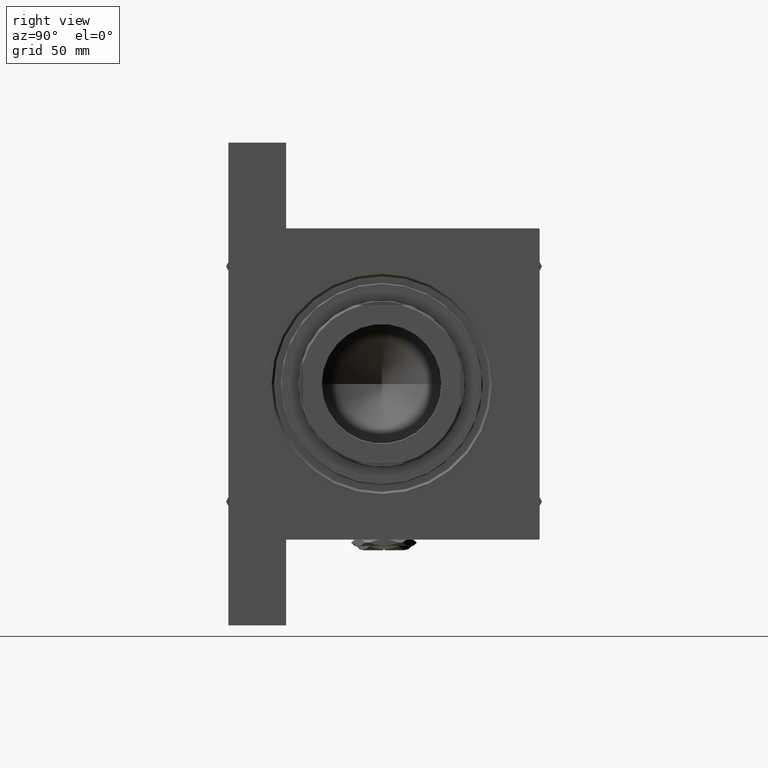
[diagram: clean part render]
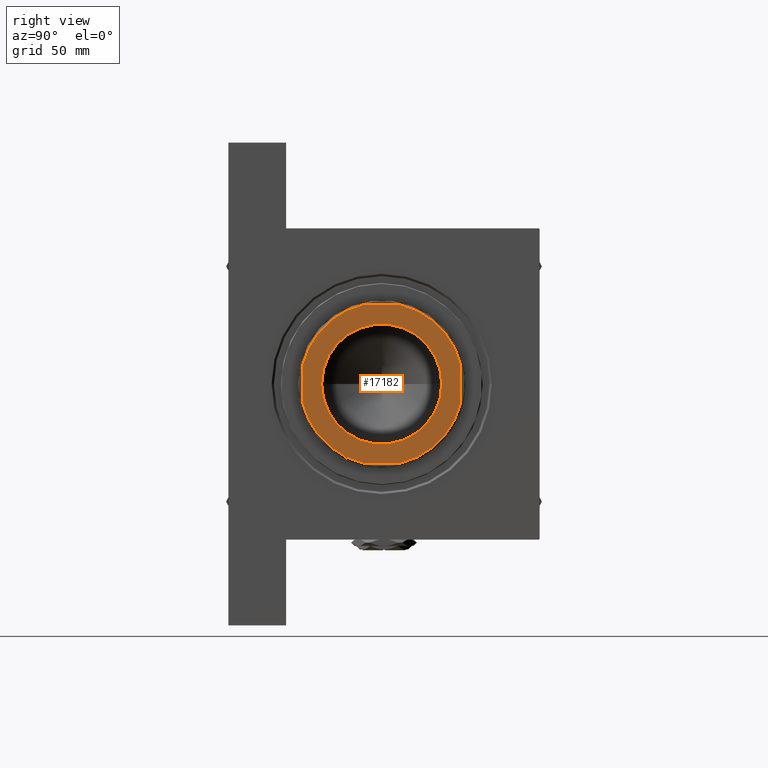
[diagram: same view with one face highlighted and labeled with its STEP entity id]
A machine part, right view. The second image highlights one B-rep face of the part: STEP entity #17182.
In plain terms, the highlighted planar face has unit normal (1, 0, 0).
Its self-contained STEP definition (entity closure, byte-faithful):
#657 = CARTESIAN_POINT ( 'NONE',  ( -51.99999999999999289, 52.00000000000001421, 205.0000000000000000 ) ) ;
#905 = LINE ( 'NONE', #657, #12919 ) ;
#2614 = CIRCLE ( 'NONE', #47978, 39.54999999999997584 ) ;
#3071 = EDGE_CURVE ( 'NONE', #24090, #10987, #36433, .T. ) ;
#4441 = DIRECTION ( 'NONE',  ( 1.000000000000000000, 0.000000000000000000, 0.000000000000000000 ) ) ;
#4532 = ORIENTED_EDGE ( 'NONE', *, *, #43561, .T. ) ;
#4692 = AXIS2_PLACEMENT_3D ( 'NONE', #6076, #37018, #44883 ) ;
#6076 = CARTESIAN_POINT ( 'NONE',  ( 0.000000000000000000, 0.000000000000000000, 205.0000000000000000 ) ) ;
#7041 = ORIENTED_EDGE ( 'NONE', *, *, #17250, .T. ) ;
#7376 = CARTESIAN_POINT ( 'NONE',  ( -39.54999999999997584, 4.843478090627778580E-15, 205.0000000000000000 ) ) ;
#7879 = EDGE_CURVE ( 'NONE', #46525, #32665, #46996, .T. ) ;
#8947 = CARTESIAN_POINT ( 'NONE',  ( 39.54999999999997584, 0.000000000000000000, 205.0000000000000000 ) ) ;
#9083 = AXIS2_PLACEMENT_3D ( 'NONE', #33605, #17867, #11014 ) ;
#9666 = DIRECTION ( 'NONE',  ( 1.000000000000000000, 0.000000000000000000, 0.000000000000000000 ) ) ;
#10642 = AXIS2_PLACEMENT_3D ( 'NONE', #31158, #30154, #45612 ) ;
#10987 = VERTEX_POINT ( 'NONE', #28375 ) ;
#11014 = DIRECTION ( 'NONE',  ( 1.000000000000000000, 0.000000000000000000, 0.000000000000000000 ) ) ;
#11703 = VERTEX_POINT ( 'NONE', #7376 ) ;
#12198 = DIRECTION ( 'NONE',  ( 1.000000000000000000, 0.000000000000000000, 0.000000000000000000 ) ) ;
#12532 = FACE_BOUND ( 'NONE', #13581, .T. ) ;
#12807 = DIRECTION ( 'NONE',  ( 0.000000000000000000, -0.000000000000000000, -1.000000000000000000 ) ) ;
#12919 = VECTOR ( 'NONE', #42756, 1000.000000000000000 ) ;
#13581 = EDGE_LOOP ( 'NONE', ( #45178, #31969 ) ) ;
#14231 = EDGE_CURVE ( 'NONE', #21698, #31175, #905, .T. ) ;
#14534 = CARTESIAN_POINT ( 'NONE',  ( 12.57974562540865726, -51.99999999999999289, 205.0000000000000000 ) ) ;
#15119 = DIRECTION ( 'NONE',  ( 1.000000000000000000, 0.000000000000000000, 0.000000000000000000 ) ) ;
#15544 = AXIS2_PLACEMENT_3D ( 'NONE', #34915, #35158, #15119 ) ;
#15999 = DIRECTION ( 'NONE',  ( -0.000000000000000000, 0.000000000000000000, 1.000000000000000000 ) ) ;
#16433 = CARTESIAN_POINT ( 'NONE',  ( -12.57974562540890062, 52.00000000000001421, 205.0000000000000000 ) ) ;
#17182 = ADVANCED_FACE ( 'NONE', ( #12532, #46118 ), #43236, .T. ) ;
#17250 = EDGE_CURVE ( 'NONE', #37706, #24090, #18720, .T. ) ;
#17867 = DIRECTION ( 'NONE',  ( -0.000000000000000000, 0.000000000000000000, 1.000000000000000000 ) ) ;
#18224 = EDGE_CURVE ( 'NONE', #32665, #21698, #44642, .T. ) ;
#18720 = LINE ( 'NONE', #34215, #43025 ) ;
#19241 = EDGE_CURVE ( 'NONE', #44257, #11703, #31774, .T. ) ;
#19373 = CARTESIAN_POINT ( 'NONE',  ( -51.99999999999998579, -12.57974562540868213, 205.0000000000000000 ) ) ;
#19670 = EDGE_CURVE ( 'NONE', #10987, #39754, #48242, .T. ) ;
#20177 = DIRECTION ( 'NONE',  ( 1.000000000000000000, 0.000000000000000000, 0.000000000000000000 ) ) ;
#20539 = EDGE_CURVE ( 'NONE', #39754, #46525, #24483, .T. ) ;
#20848 = CIRCLE ( 'NONE', #4692, 53.49999999999995737 ) ;
#21227 = VECTOR ( 'NONE', #9666, 1000.000000000000000 ) ;
#21698 = VERTEX_POINT ( 'NONE', #42168 ) ;
#22452 = EDGE_LOOP ( 'NONE', ( #49951, #37961, #40029, #4532, #7041, #44821, #36407, #48486 ) ) ;
#22769 = VECTOR ( 'NONE', #42927, 1000.000000000000000 ) ;
#23911 = EDGE_CURVE ( 'NONE', #11703, #44257, #2614, .T. ) ;
#24090 = VERTEX_POINT ( 'NONE', #19373 ) ;
#24483 = CIRCLE ( 'NONE', #9083, 53.49999999999987921 ) ;
#28375 = CARTESIAN_POINT ( 'NONE',  ( -12.57974562540865904, -51.99999999999999289, 205.0000000000000000 ) ) ;
#29722 = CARTESIAN_POINT ( 'NONE',  ( -51.99999999999997868, -51.99999999999999289, 205.0000000000000000 ) ) ;
#30154 = DIRECTION ( 'NONE',  ( -0.000000000000000000, 0.000000000000000000, 1.000000000000000000 ) ) ;
#30657 = CARTESIAN_POINT ( 'NONE',  ( 0.000000000000000000, 0.000000000000000000, 205.0000000000000000 ) ) ;
#31158 = CARTESIAN_POINT ( 'NONE',  ( 0.000000000000000000, 0.000000000000000000, 205.0000000000000000 ) ) ;
#31175 = VERTEX_POINT ( 'NONE', #16433 ) ;
#31774 = CIRCLE ( 'NONE', #15544, 39.54999999999997584 ) ;
#31969 = ORIENTED_EDGE ( 'NONE', *, *, #23911, .T. ) ;
#32013 = CARTESIAN_POINT ( 'NONE',  ( 52.00000000000001421, 52.00000000000001421, 205.0000000000000000 ) ) ;
#32665 = VERTEX_POINT ( 'NONE', #36344 ) ;
#33280 = AXIS2_PLACEMENT_3D ( 'NONE', #30657, #38246, #4441 ) ;
#33605 = CARTESIAN_POINT ( 'NONE',  ( 0.000000000000000000, 0.000000000000000000, 205.0000000000000000 ) ) ;
#34215 = CARTESIAN_POINT ( 'NONE',  ( -51.99999999999999289, 52.00000000000001421, 205.0000000000000000 ) ) ;
#34260 = CARTESIAN_POINT ( 'NONE',  ( 52.00000000000001421, -12.57974562540856844, 205.0000000000000000 ) ) ;
#34915 = CARTESIAN_POINT ( 'NONE',  ( 0.000000000000000000, 0.000000000000000000, 205.0000000000000000 ) ) ;
#35158 = DIRECTION ( 'NONE',  ( 0.000000000000000000, -0.000000000000000000, -1.000000000000000000 ) ) ;
#36344 = CARTESIAN_POINT ( 'NONE',  ( 52.00000000000001421, 12.57974562540872654, 205.0000000000000000 ) ) ;
#36407 = ORIENTED_EDGE ( 'NONE', *, *, #19670, .T. ) ;
#36433 = CIRCLE ( 'NONE', #41286, 53.49999999999987921 ) ;
#37018 = DIRECTION ( 'NONE',  ( -0.000000000000000000, 0.000000000000000000, 1.000000000000000000 ) ) ;
#37706 = VERTEX_POINT ( 'NONE', #39520 ) ;
#37961 = ORIENTED_EDGE ( 'NONE', *, *, #18224, .T. ) ;
#38246 = DIRECTION ( 'NONE',  ( -0.000000000000000000, 0.000000000000000000, 1.000000000000000000 ) ) ;
#39520 = CARTESIAN_POINT ( 'NONE',  ( -51.99999999999998579, 12.57974562540899832, 205.0000000000000000 ) ) ;
#39754 = VERTEX_POINT ( 'NONE', #14534 ) ;
#40029 = ORIENTED_EDGE ( 'NONE', *, *, #14231, .T. ) ;
#41286 = AXIS2_PLACEMENT_3D ( 'NONE', #46710, #15999, #12198 ) ;
#42168 = CARTESIAN_POINT ( 'NONE',  ( 12.57974562540872832, 52.00000000000001421, 205.0000000000000000 ) ) ;
#42756 = DIRECTION ( 'NONE',  ( -1.000000000000000000, -0.000000000000000000, -0.000000000000000000 ) ) ;
#42927 = DIRECTION ( 'NONE',  ( -0.000000000000000000, 1.000000000000000000, -0.000000000000000000 ) ) ;
#43025 = VECTOR ( 'NONE', #49673, 1000.000000000000000 ) ;
#43236 = PLANE ( 'NONE',  #33280 ) ;
#43265 = CARTESIAN_POINT ( 'NONE',  ( 0.000000000000000000, 0.000000000000000000, 205.0000000000000000 ) ) ;
#43561 = EDGE_CURVE ( 'NONE', #31175, #37706, #20848, .T. ) ;
#44257 = VERTEX_POINT ( 'NONE', #8947 ) ;
#44642 = CIRCLE ( 'NONE', #10642, 53.49999999999991473 ) ;
#44821 = ORIENTED_EDGE ( 'NONE', *, *, #3071, .T. ) ;
#44883 = DIRECTION ( 'NONE',  ( 1.000000000000000000, 0.000000000000000000, 0.000000000000000000 ) ) ;
#45178 = ORIENTED_EDGE ( 'NONE', *, *, #19241, .T. ) ;
#45612 = DIRECTION ( 'NONE',  ( 1.000000000000000000, 0.000000000000000000, 0.000000000000000000 ) ) ;
#46118 = FACE_OUTER_BOUND ( 'NONE', #22452, .T. ) ;
#46525 = VERTEX_POINT ( 'NONE', #34260 ) ;
#46710 = CARTESIAN_POINT ( 'NONE',  ( 0.000000000000000000, 0.000000000000000000, 205.0000000000000000 ) ) ;
#46996 = LINE ( 'NONE', #32013, #22769 ) ;
#47978 = AXIS2_PLACEMENT_3D ( 'NONE', #43265, #12807, #20177 ) ;
#48242 = LINE ( 'NONE', #29722, #21227 ) ;
#48486 = ORIENTED_EDGE ( 'NONE', *, *, #20539, .T. ) ;
#49673 = DIRECTION ( 'NONE',  ( 1.334402673828313093E-16, -1.000000000000000000, 0.000000000000000000 ) ) ;
#49951 = ORIENTED_EDGE ( 'NONE', *, *, #7879, .T. ) ;